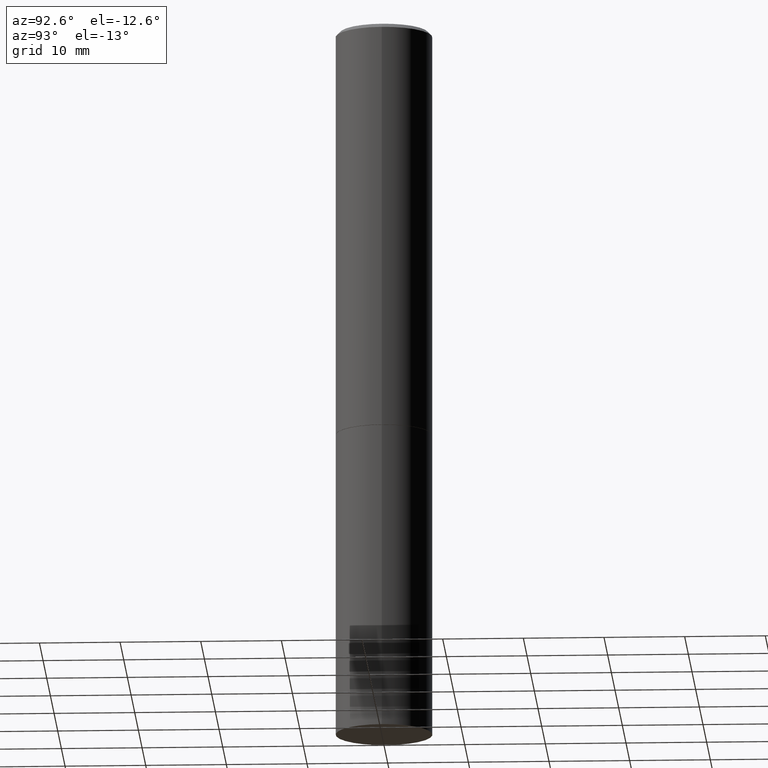
[diagram: clean part render]
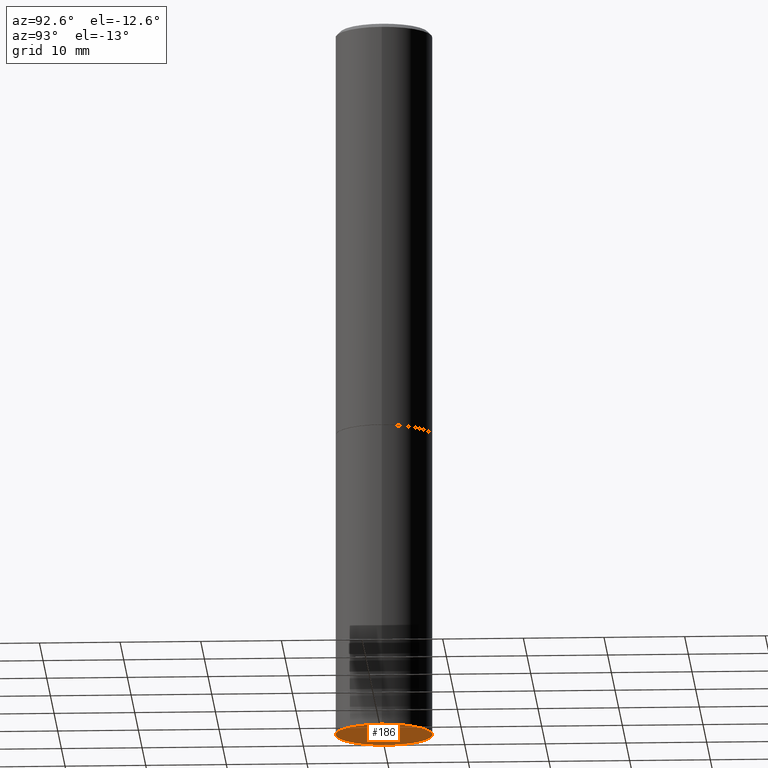
[diagram: same view with one face highlighted and labeled with its STEP entity id]
A machine part, auxiliary view. The second image highlights one B-rep face of the part: STEP entity #186.
In plain terms, the highlighted planar face has unit normal (0, -0, -1).
Its self-contained STEP definition (entity closure, byte-faithful):
#2 = EDGE_CURVE ( 'NONE', #129, #241, #288, .T. ) ;
#8 = CARTESIAN_POINT ( 'NONE',  ( -0.2361999999999999933, -7.943696905785525451E-15, -3.503899999999999793 ) ) ;
#21 = ORIENTED_EDGE ( 'NONE', *, *, #2, .F. ) ;
#32 = ORIENTED_EDGE ( 'NONE', *, *, #33, .F. ) ;
#33 = EDGE_CURVE ( 'NONE', #241, #129, #117, .T. ) ;
#51 = CARTESIAN_POINT ( 'NONE',  ( 0.2361999999999999933, -1.388317724764199281E-14, -3.503899999999999793 ) ) ;
#95 = FACE_OUTER_BOUND ( 'NONE', #120, .T. ) ;
#117 = CIRCLE ( 'NONE', #255, 0.2361999999999999933 ) ;
#120 = EDGE_LOOP ( 'NONE', ( #32, #21 ) ) ;
#129 = VERTEX_POINT ( 'NONE', #8 ) ;
#141 = DIRECTION ( 'NONE',  ( 1.000000000000000000, -6.982962677686265133E-15, 0.000000000000000000 ) ) ;
#163 = AXIS2_PLACEMENT_3D ( 'NONE', #353, #240, #321 ) ;
#172 = CARTESIAN_POINT ( 'NONE',  ( 8.568678149992099474E-29, -1.223380146317249786E-14, -3.503899999999999793 ) ) ;
#186 = ADVANCED_FACE ( 'NONE', ( #95 ), #266, .T. ) ;
#240 = DIRECTION ( 'NONE',  ( 2.438088387897960049E-29, -3.491481338843145188E-15, -1.000000000000000000 ) ) ;
#241 = VERTEX_POINT ( 'NONE', #51 ) ;
#255 = AXIS2_PLACEMENT_3D ( 'NONE', #342, #284, #141 ) ;
#266 = PLANE ( 'NONE',  #163 ) ;
#284 = DIRECTION ( 'NONE',  ( -2.445468806185136597E-29, 3.491481338843145583E-15, 1.000000000000000000 ) ) ;
#288 = CIRCLE ( 'NONE', #362, 0.2361999999999999933 ) ;
#315 = DIRECTION ( 'NONE',  ( -2.445468806185136597E-29, 3.491481338843145583E-15, 1.000000000000000000 ) ) ;
#317 = DIRECTION ( 'NONE',  ( 1.000000000000000000, -6.982962677686265133E-15, 0.000000000000000000 ) ) ;
#321 = DIRECTION ( 'NONE',  ( -1.000000000000000000, 6.982962677686265922E-15, -4.876176775795935793E-29 ) ) ;
#342 = CARTESIAN_POINT ( 'NONE',  ( 8.568678149992099474E-29, -1.223380146317249786E-14, -3.503899999999999793 ) ) ;
#353 = CARTESIAN_POINT ( 'NONE',  ( 1.649375784469581525E-15, 0.2361999999999877808, -3.503900000000000681 ) ) ;
#362 = AXIS2_PLACEMENT_3D ( 'NONE', #172, #315, #317 ) ;